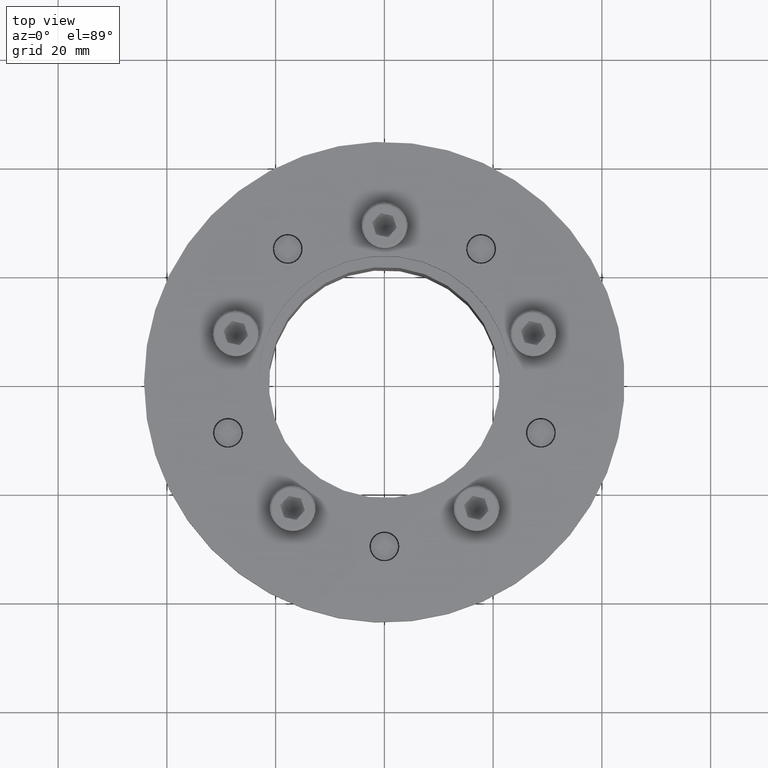
[diagram: clean part render]
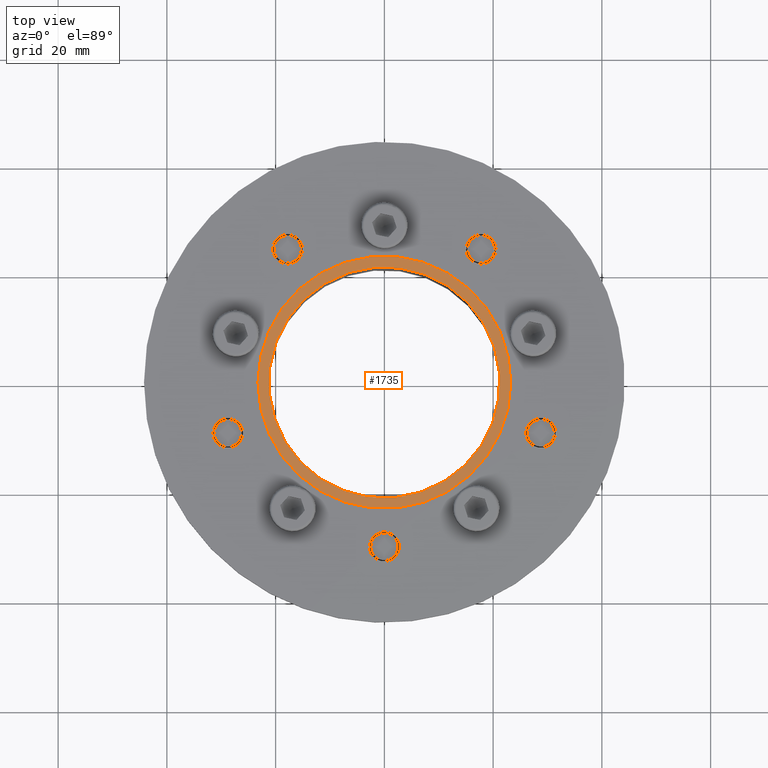
[diagram: same view with one face highlighted and labeled with its STEP entity id]
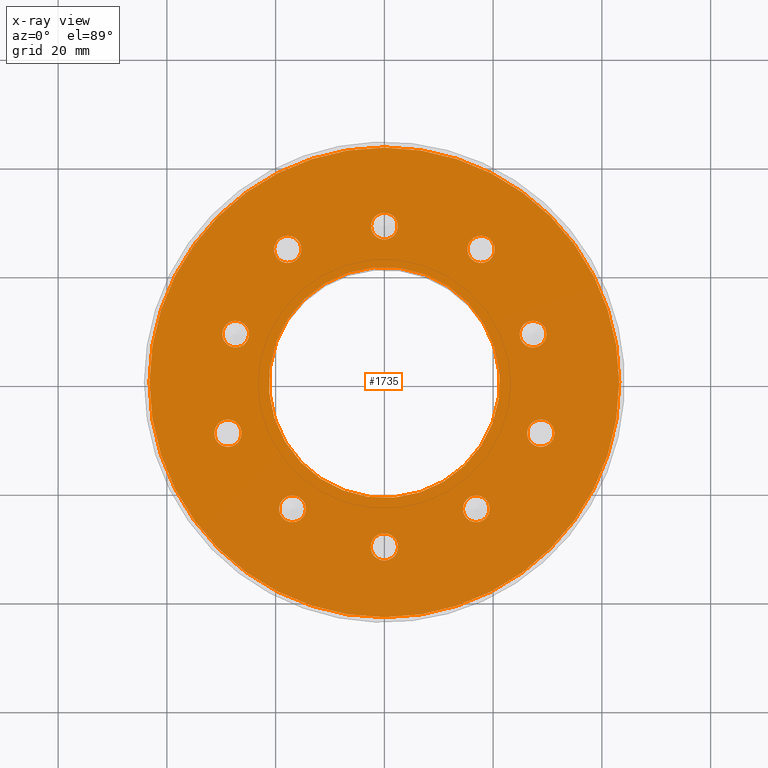
[diagram: x-ray of the same camera — body ghosted, the highlighted face saturated]
A machine part, top view. The second image highlights one B-rep face of the part: STEP entity #1735.
The next image is the same camera in x-ray: the body ghosted, the highlighted face saturated — about 0% of this face is hidden behind the body in this view.
In plain terms, the highlighted planar face has unit normal (0, -0, -1).
Its self-contained STEP definition (entity closure, byte-faithful):
#279=FACE_BOUND('',#492,.T.);
#280=FACE_BOUND('',#493,.T.);
#281=FACE_BOUND('',#494,.T.);
#282=FACE_BOUND('',#495,.T.);
#283=FACE_BOUND('',#496,.T.);
#284=FACE_BOUND('',#497,.T.);
#285=FACE_BOUND('',#498,.T.);
#286=FACE_BOUND('',#499,.T.);
#287=FACE_BOUND('',#500,.T.);
#288=FACE_BOUND('',#501,.T.);
#289=FACE_BOUND('',#502,.T.);
#334=PLANE('',#2032);
#394=FACE_OUTER_BOUND('',#491,.T.);
#491=EDGE_LOOP('',(#1423));
#492=EDGE_LOOP('',(#1424));
#493=EDGE_LOOP('',(#1425));
#494=EDGE_LOOP('',(#1426));
#495=EDGE_LOOP('',(#1427));
#496=EDGE_LOOP('',(#1428));
#497=EDGE_LOOP('',(#1429));
#498=EDGE_LOOP('',(#1430));
#499=EDGE_LOOP('',(#1431));
#500=EDGE_LOOP('',(#1432));
#501=EDGE_LOOP('',(#1433));
#502=EDGE_LOOP('',(#1434));
#658=CIRCLE('',#2000,2.5);
#660=CIRCLE('',#2004,2.5);
#662=CIRCLE('',#2008,2.5);
#664=CIRCLE('',#2012,2.5);
#666=CIRCLE('',#2016,2.5);
#667=CIRCLE('',#2019,43.2);
#668=CIRCLE('',#2021,21.25);
#669=CIRCLE('',#2023,2.45);
#670=CIRCLE('',#2025,2.45);
#671=CIRCLE('',#2027,2.45);
#672=CIRCLE('',#2029,2.45);
#673=CIRCLE('',#2031,2.45);
#826=VERTEX_POINT('',#2994);
#828=VERTEX_POINT('',#3001);
#830=VERTEX_POINT('',#3008);
#832=VERTEX_POINT('',#3015);
#834=VERTEX_POINT('',#3022);
#835=VERTEX_POINT('',#3027);
#836=VERTEX_POINT('',#3031);
#837=VERTEX_POINT('',#3035);
#838=VERTEX_POINT('',#3039);
#839=VERTEX_POINT('',#3043);
#840=VERTEX_POINT('',#3047);
#841=VERTEX_POINT('',#3051);
#1031=EDGE_CURVE('',#826,#826,#658,.T.);
#1034=EDGE_CURVE('',#828,#828,#660,.T.);
#1037=EDGE_CURVE('',#830,#830,#662,.T.);
#1040=EDGE_CURVE('',#832,#832,#664,.T.);
#1043=EDGE_CURVE('',#834,#834,#666,.T.);
#1044=EDGE_CURVE('',#835,#835,#667,.T.);
#1047=EDGE_CURVE('',#836,#836,#668,.T.);
#1049=EDGE_CURVE('',#837,#837,#669,.T.);
#1051=EDGE_CURVE('',#838,#838,#670,.T.);
#1053=EDGE_CURVE('',#839,#839,#671,.T.);
#1055=EDGE_CURVE('',#840,#840,#672,.T.);
#1057=EDGE_CURVE('',#841,#841,#673,.T.);
#1423=ORIENTED_EDGE('',*,*,#1044,.T.);
#1424=ORIENTED_EDGE('',*,*,#1031,.T.);
#1425=ORIENTED_EDGE('',*,*,#1034,.T.);
#1426=ORIENTED_EDGE('',*,*,#1037,.T.);
#1427=ORIENTED_EDGE('',*,*,#1040,.T.);
#1428=ORIENTED_EDGE('',*,*,#1043,.T.);
#1429=ORIENTED_EDGE('',*,*,#1047,.T.);
#1430=ORIENTED_EDGE('',*,*,#1049,.T.);
#1431=ORIENTED_EDGE('',*,*,#1051,.T.);
#1432=ORIENTED_EDGE('',*,*,#1053,.T.);
#1433=ORIENTED_EDGE('',*,*,#1055,.T.);
#1434=ORIENTED_EDGE('',*,*,#1057,.T.);
#1735=ADVANCED_FACE('',(#394,#279,#280,#281,#282,#283,#284,#285,#286,#287,
#288,#289),#334,.F.);
#2000=AXIS2_PLACEMENT_3D('',#2996,#2409,#2410);
#2004=AXIS2_PLACEMENT_3D('',#3003,#2418,#2419);
#2008=AXIS2_PLACEMENT_3D('',#3010,#2427,#2428);
#2012=AXIS2_PLACEMENT_3D('',#3017,#2436,#2437);
#2016=AXIS2_PLACEMENT_3D('',#3024,#2445,#2446);
#2019=AXIS2_PLACEMENT_3D('',#3028,#2451,#2452);
#2021=AXIS2_PLACEMENT_3D('',#3033,#2457,#2458);
#2023=AXIS2_PLACEMENT_3D('',#3037,#2462,#2463);
#2025=AXIS2_PLACEMENT_3D('',#3041,#2467,#2468);
#2027=AXIS2_PLACEMENT_3D('',#3045,#2472,#2473);
#2029=AXIS2_PLACEMENT_3D('',#3049,#2477,#2478);
#2031=AXIS2_PLACEMENT_3D('',#3053,#2482,#2483);
#2032=AXIS2_PLACEMENT_3D('',#3054,#2484,#2485);
#2409=DIRECTION('center_axis',(0.,0.,-1.));
#2410=DIRECTION('ref_axis',(-0.309016994374947,0.951056516295154,0.));
#2418=DIRECTION('center_axis',(0.,0.,-1.));
#2419=DIRECTION('ref_axis',(0.809016994374947,0.587785252292473,0.));
#2427=DIRECTION('center_axis',(0.,0.,-1.));
#2428=DIRECTION('ref_axis',(0.809016994374947,-0.587785252292473,0.));
#2436=DIRECTION('center_axis',(0.,0.,-1.));
#2437=DIRECTION('ref_axis',(-0.309016994374948,-0.951056516295154,0.));
#2445=DIRECTION('center_axis',(0.,0.,-1.));
#2446=DIRECTION('ref_axis',(-1.,0.,0.));
#2451=DIRECTION('center_axis',(0.,0.,1.));
#2452=DIRECTION('ref_axis',(0.,-1.,-1.83697019872103E-16));
#2457=DIRECTION('center_axis',(0.,0.,-1.));
#2458=DIRECTION('ref_axis',(-1.,0.,0.));
#2462=DIRECTION('center_axis',(0.,0.,-1.));
#2463=DIRECTION('ref_axis',(-1.,0.,0.));
#2467=DIRECTION('center_axis',(0.,0.,-1.));
#2468=DIRECTION('ref_axis',(-1.,0.,0.));
#2472=DIRECTION('center_axis',(0.,0.,-1.));
#2473=DIRECTION('ref_axis',(-1.,0.,0.));
#2477=DIRECTION('center_axis',(0.,0.,-1.));
#2478=DIRECTION('ref_axis',(-1.,0.,0.));
#2482=DIRECTION('center_axis',(0.,0.,-1.));
#2483=DIRECTION('ref_axis',(-1.,0.,0.));
#2484=DIRECTION('center_axis',(0.,0.,-1.));
#2485=DIRECTION('ref_axis',(-1.,0.,0.));
#2994=CARTESIAN_POINT('',(29.5420021038658,6.97012278910427,35.));
#2996=CARTESIAN_POINT('Origin',(28.7694596179284,9.34776407984216,35.));
#3001=CARTESIAN_POINT('',(15.75796139591,-25.9422272105734,35.));
#3003=CARTESIAN_POINT('Origin',(17.7805038818473,-24.4727640798422,35.));
#3008=CARTESIAN_POINT('',(-19.8030463677847,-23.003300949111,35.));
#3010=CARTESIAN_POINT('Origin',(-17.7805038818473,-24.4727640798422,35.));
#3015=CARTESIAN_POINT('',(-27.996917131991,11.72540537058,35.));
#3017=CARTESIAN_POINT('Origin',(-28.7694596179284,9.34776407984217,35.));
#3022=CARTESIAN_POINT('',(2.5,30.25,35.));
#3024=CARTESIAN_POINT('Origin',(-5.55111512312578E-16,30.25,35.));
#3027=CARTESIAN_POINT('',(-5.29047417231657E-15,43.2,35.));
#3028=CARTESIAN_POINT('Origin',(0.,-6.4293956955236E-15,35.));
#3031=CARTESIAN_POINT('',(21.25,3.1574859605007E-15,35.));
#3033=CARTESIAN_POINT('Origin',(-5.55111512312578E-16,5.55111512312578E-16,
35.));
#3035=CARTESIAN_POINT('',(-24.8928748434857,-8.88423858827975,35.));
#3037=CARTESIAN_POINT('Origin',(-27.3428748434857,-8.88423858827975,35.));
#3039=CARTESIAN_POINT('',(29.7928748434857,-8.88423858827973,35.));
#3041=CARTESIAN_POINT('Origin',(27.3428748434857,-8.88423858827973,35.));
#3043=CARTESIAN_POINT('',(19.3488260034086,23.2592385882797,35.));
#3045=CARTESIAN_POINT('Origin',(16.8988260034086,23.2592385882797,35.));
#3047=CARTESIAN_POINT('',(-14.4488260034086,23.2592385882797,35.));
#3049=CARTESIAN_POINT('Origin',(-16.8988260034086,23.2592385882797,35.));
#3051=CARTESIAN_POINT('',(2.45000000000001,-28.75,35.));
#3053=CARTESIAN_POINT('Origin',(1.27675647831893E-14,-28.75,35.));
#3054=CARTESIAN_POINT('Origin',(-5.55111512312578E-16,5.55111512312578E-16,
35.));